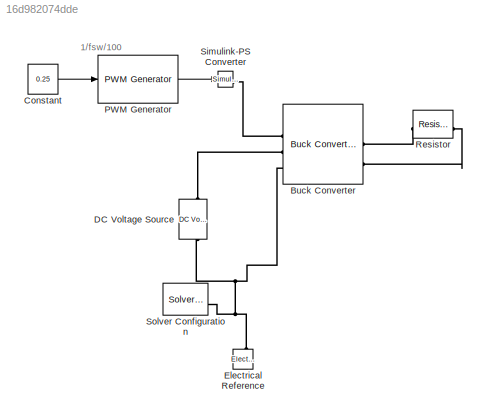
MODEL slx_16d982074dde
KIND model
CONFIG AbsTol = auto
CONFIG EnableMultiTasking = off
CONFIG FixedStep = auto
CONFIG MaxStep = auto
CONFIG MinStep = auto
CONFIG RelTol = 1e-3
CONFIG SampleTimeConstraint = Unconstrained
CONFIG SolverName = ode23t
CONFIG StartFcn = learning.simulink.modelCallbacks.startFunction(gcs)
CONFIG StartTime = 0.0
CONFIG StopFcn = learning.simulink.modelCallbacks.stopFunction(gcs);learning.assess.stopFunction(gcs,gcb);
CONFIG StopTime = 0.003
WORKSPACE source: mxarray member
WORKSPACE courseObject: object (value not decoded)
BLOCK [Reference] Buck Converter  REF=ee_lib/Semiconductors &
Converters/Converters/Buck Converter
  SourceBlock = ee_lib/Semiconductors &\nConverters/Converters/Buck Converter
  SourceType = Buck Converter
BLOCK [Constant] Constant
  Value = 0.25
BLOCK [Reference] DC Voltage Source  REF=fl_lib/Electrical/Electrical Sources/DC Voltage Source
  NameLocation = right
  SourceBlock = fl_lib/Electrical/Electrical Sources/DC Voltage Source
  SourceType = DC Voltage Source
BLOCK [Reference] Electrical Reference  REF=fl_lib/Electrical/Electrical Elements/Electrical Reference
  NameLocation = right
  SourceBlock = fl_lib/Electrical/Electrical Elements/Electrical Reference
  SourceType = Electrical Reference
BLOCK [Reference] PWM Generator  REF=eePwmGenerator/PWM Generator
  LibrarySourceBlock = ee_sl_lib/Pulse Width\nModulation/PWM Generator
  SourceBlock = eePwmGenerator/PWM Generator
  SourceType = PWM Generator
BLOCK [Reference] Resistor  REF=fl_lib/Electrical/Electrical Elements/Resistor
  SourceBlock = fl_lib/Electrical/Electrical Elements/Resistor
  SourceType = Resistor
BLOCK [Reference] Simulink-PS Converter  REF=nesl_utility/Simulink-PS
Converter
  SourceBlock = nesl_utility/Simulink-PS\nConverter
  SourceType = Simulink-PS\nConverter
BLOCK [Reference] Solver Configuration  REF=nesl_utility/Solver
Configuration
  SourceBlock = nesl_utility/Solver\nConfiguration
  SourceType = Solver\nConfiguration
ANNOTATION (root): 1/fsw/100
LINE Constant:1 -> PWM Generator:1
LINE PWM Generator:1 -> Simulink-PS Converter:1
PLINE Buck Converter:LConn1 -- Simulink-PS Converter:RConn1
PLINE Buck Converter:LConn2 -- DC Voltage Source:LConn1
PNET net1: Buck Converter:LConn3 -- DC Voltage Source:RConn1 -- Electrical Reference:LConn1 -- Solver Configuration:RConn1
PLINE Buck Converter:RConn1 -- Resistor:LConn1
PLINE Buck Converter:RConn2 -- Resistor:RConn1
note: PNET lines group multi-terminal physical nets as a canonical sorted terminal list (undirected conserving connections); 2-terminal nets keep the pairwise PLINE form
